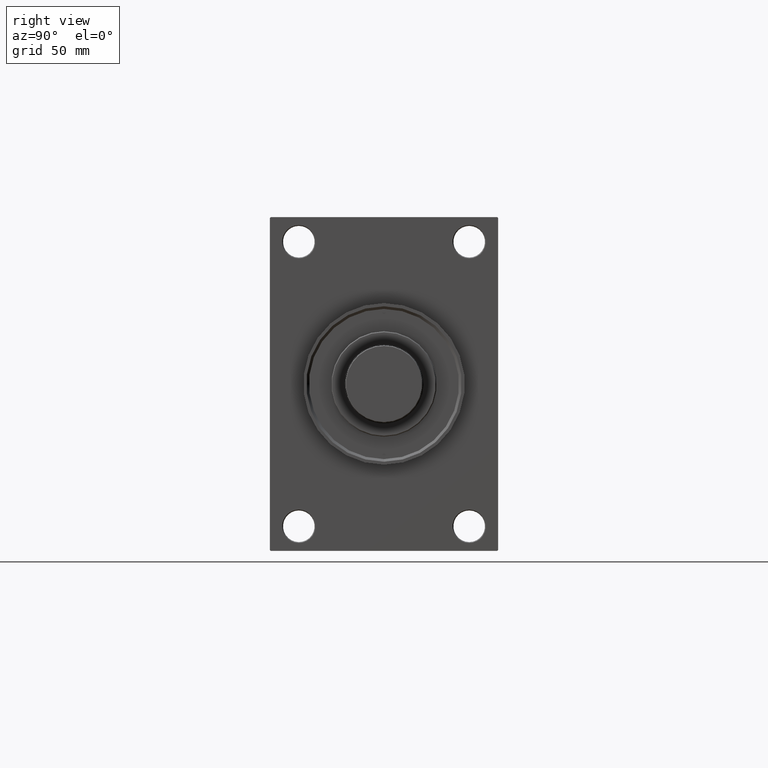
[diagram: clean part render]
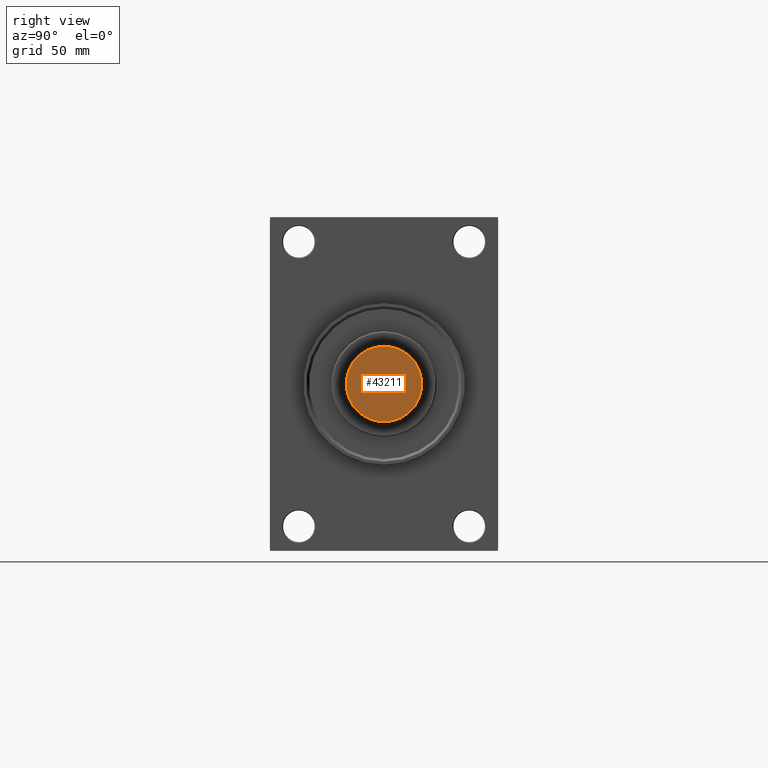
[diagram: same view with one face highlighted and labeled with its STEP entity id]
A machine part, right view. The second image highlights one B-rep face of the part: STEP entity #43211.
In plain terms, the highlighted planar face has unit normal (1, 0, 0).
Its self-contained STEP definition (entity closure, byte-faithful):
#1690 = CIRCLE ( 'NONE', #25881, 21.50000000000000000 ) ;
#5234 = EDGE_CURVE ( 'NONE', #44380, #7508, #1690, .T. ) ;
#6747 = CARTESIAN_POINT ( 'NONE',  ( -21.50000000000000000, 2.663606788145493022E-15, 0.000000000000000000 ) ) ;
#7508 = VERTEX_POINT ( 'NONE', #14496 ) ;
#8317 = DIRECTION ( 'NONE',  ( 1.000000000000000000, 0.000000000000000000, 0.000000000000000000 ) ) ;
#9876 = DIRECTION ( 'NONE',  ( 0.000000000000000000, 0.000000000000000000, 1.000000000000000000 ) ) ;
#10318 = EDGE_CURVE ( 'NONE', #7508, #44380, #19748, .T. ) ;
#11424 = DIRECTION ( 'NONE',  ( 1.000000000000000000, 0.000000000000000000, -0.000000000000000000 ) ) ;
#11643 = EDGE_LOOP ( 'NONE', ( #35232, #21122 ) ) ;
#11978 = DIRECTION ( 'NONE',  ( 0.000000000000000000, 0.000000000000000000, 1.000000000000000000 ) ) ;
#13539 = CARTESIAN_POINT ( 'NONE',  ( 0.000000000000000000, 0.000000000000000000, 0.000000000000000000 ) ) ;
#14496 = CARTESIAN_POINT ( 'NONE',  ( 21.50000000000000000, 0.000000000000000000, 0.000000000000000000 ) ) ;
#15142 = AXIS2_PLACEMENT_3D ( 'NONE', #45449, #11978, #8317 ) ;
#18506 = FACE_OUTER_BOUND ( 'NONE', #11643, .T. ) ;
#18976 = CARTESIAN_POINT ( 'NONE',  ( 0.000000000000000000, 0.000000000000000000, 0.000000000000000000 ) ) ;
#19748 = CIRCLE ( 'NONE', #15142, 21.50000000000000000 ) ;
#21122 = ORIENTED_EDGE ( 'NONE', *, *, #5234, .T. ) ;
#25881 = AXIS2_PLACEMENT_3D ( 'NONE', #13539, #9876, #37922 ) ;
#32390 = AXIS2_PLACEMENT_3D ( 'NONE', #18976, #45374, #11424 ) ;
#35232 = ORIENTED_EDGE ( 'NONE', *, *, #10318, .T. ) ;
#37791 = PLANE ( 'NONE',  #32390 ) ;
#37922 = DIRECTION ( 'NONE',  ( 1.000000000000000000, 0.000000000000000000, 0.000000000000000000 ) ) ;
#43211 = ADVANCED_FACE ( 'NONE', ( #18506 ), #37791, .T. ) ;
#44380 = VERTEX_POINT ( 'NONE', #6747 ) ;
#45374 = DIRECTION ( 'NONE',  ( 0.000000000000000000, 0.000000000000000000, 1.000000000000000000 ) ) ;
#45449 = CARTESIAN_POINT ( 'NONE',  ( 0.000000000000000000, 0.000000000000000000, 0.000000000000000000 ) ) ;